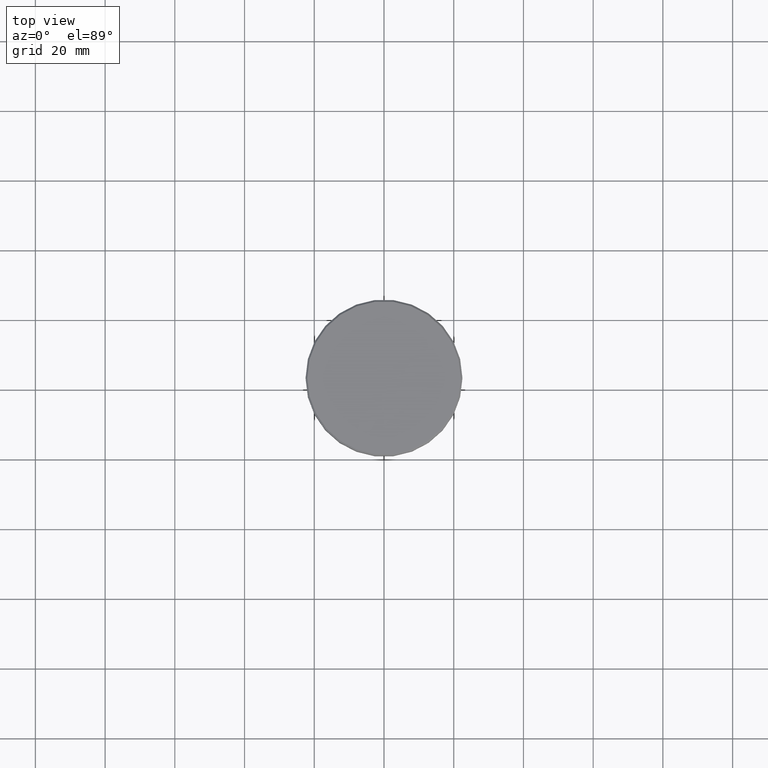
[diagram: clean part render]
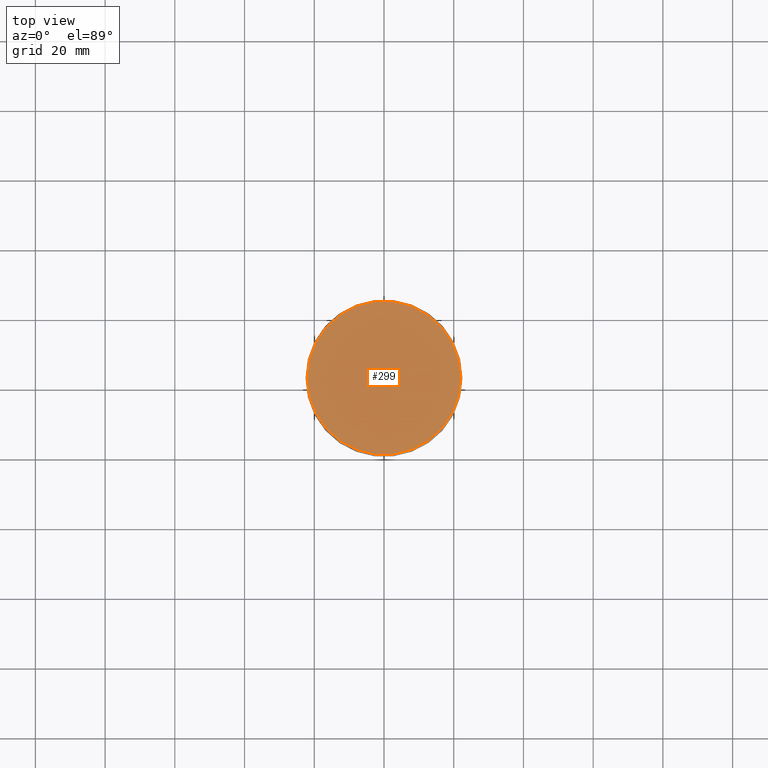
[diagram: same view with one face highlighted and labeled with its STEP entity id]
A machine part, top view. The second image highlights one B-rep face of the part: STEP entity #299.
In plain terms, the highlighted planar face has unit normal (0, -0, 1).
Its self-contained STEP definition (entity closure, byte-faithful):
#8 = ORIENTED_EDGE ( 'NONE', *, *, #753, .T. ) ;
#26 = CIRCLE ( 'NONE', #210, 21.99999999999993605 ) ;
#52 = VERTEX_POINT ( 'NONE', #1093 ) ;
#86 = CIRCLE ( 'NONE', #385, 21.99999999999993605 ) ;
#114 = CARTESIAN_POINT ( 'NONE',  ( 0.000000000000000000, 0.000000000000000000, 0.000000000000000000 ) ) ;
#123 = DIRECTION ( 'NONE',  ( 1.000000000000000000, 0.000000000000000000, 0.000000000000000000 ) ) ;
#133 = PLANE ( 'NONE',  #538 ) ;
#140 = CARTESIAN_POINT ( 'NONE',  ( 0.000000000000000000, 0.000000000000000000, 0.000000000000000000 ) ) ;
#163 = ORIENTED_EDGE ( 'NONE', *, *, #777, .T. ) ;
#210 = AXIS2_PLACEMENT_3D ( 'NONE', #1164, #959, #883 ) ;
#236 = DIRECTION ( 'NONE',  ( 1.000000000000000000, 0.000000000000000000, 0.000000000000000000 ) ) ;
#299 = ADVANCED_FACE ( 'NONE', ( #693 ), #133, .T. ) ;
#301 = DIRECTION ( 'NONE',  ( -0.000000000000000000, -0.000000000000000000, 1.000000000000000000 ) ) ;
#316 = VERTEX_POINT ( 'NONE', #410 ) ;
#344 = EDGE_LOOP ( 'NONE', ( #8, #163 ) ) ;
#385 = AXIS2_PLACEMENT_3D ( 'NONE', #114, #301, #123 ) ;
#410 = CARTESIAN_POINT ( 'NONE',  ( -21.99999999999993605, 0.000000000000000000, 0.000000000000000000 ) ) ;
#538 = AXIS2_PLACEMENT_3D ( 'NONE', #140, #1068, #236 ) ;
#693 = FACE_OUTER_BOUND ( 'NONE', #344, .T. ) ;
#753 = EDGE_CURVE ( 'NONE', #316, #52, #86, .T. ) ;
#777 = EDGE_CURVE ( 'NONE', #52, #316, #26, .T. ) ;
#883 = DIRECTION ( 'NONE',  ( 1.000000000000000000, 0.000000000000000000, 0.000000000000000000 ) ) ;
#959 = DIRECTION ( 'NONE',  ( -0.000000000000000000, -0.000000000000000000, 1.000000000000000000 ) ) ;
#1068 = DIRECTION ( 'NONE',  ( 0.000000000000000000, -0.000000000000000000, 1.000000000000000000 ) ) ;
#1093 = CARTESIAN_POINT ( 'NONE',  ( 21.99999999999993605, 2.724839128102857046E-15, 0.000000000000000000 ) ) ;
#1164 = CARTESIAN_POINT ( 'NONE',  ( 0.000000000000000000, 0.000000000000000000, 0.000000000000000000 ) ) ;